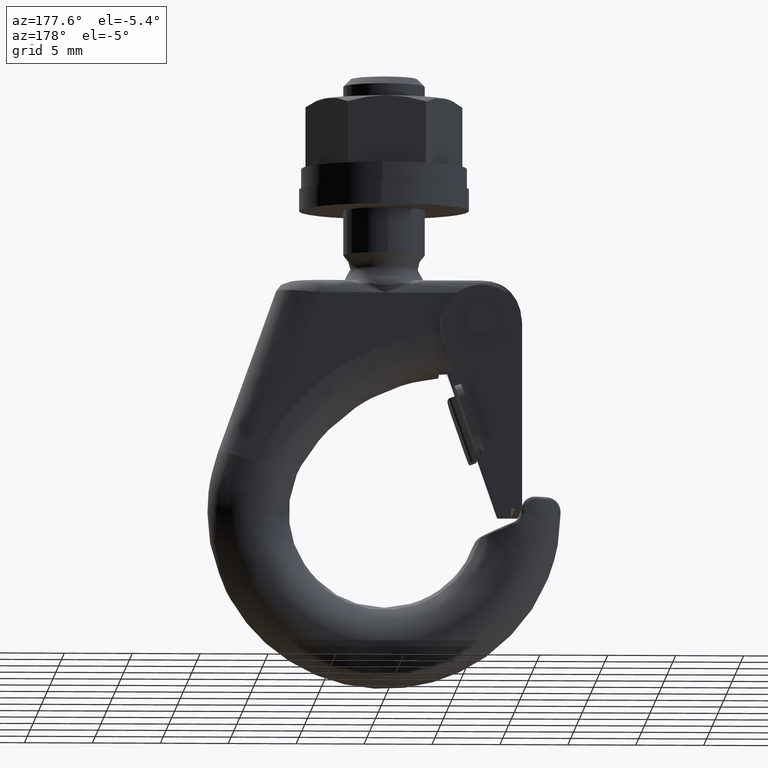
[diagram: clean part render]
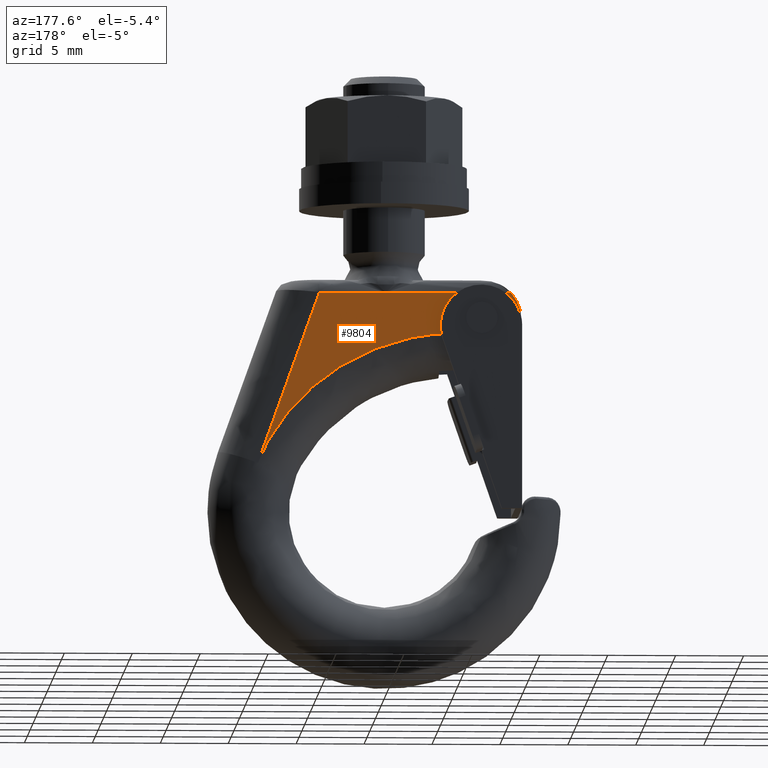
[diagram: same view with one face highlighted and labeled with its STEP entity id]
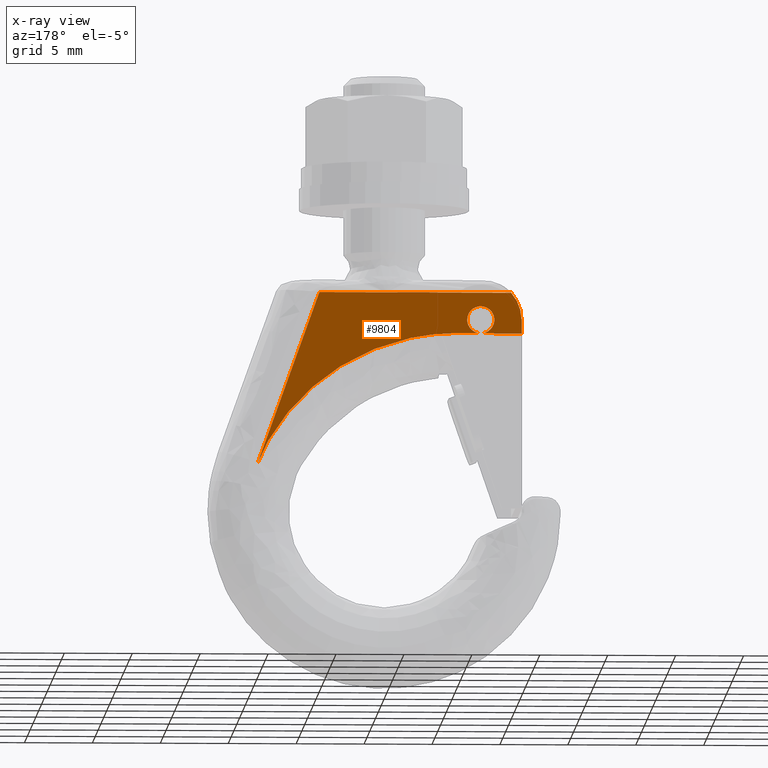
[diagram: x-ray of the same camera — body ghosted, the highlighted face saturated]
A machine part, auxiliary view. The second image highlights one B-rep face of the part: STEP entity #9804.
The next image is the same camera in x-ray: the body ghosted, the highlighted face saturated — about 0% of this face is hidden behind the body in this view.
In plain terms, the highlighted face is a freeform B-spline surface patch.
Its self-contained STEP definition (entity closure, byte-faithful):
#5809=CARTESIAN_POINT('',(-6.000038076938065,3.0,14.008726535754560));
#5810=VERTEX_POINT('',#5809);
#5816=CARTESIAN_POINT('',(-7.0,3.0,13.0));
#5817=VERTEX_POINT('',#5816);
#5818=CARTESIAN_POINT('',(-7.0,3.0,13.0));
#5819=CARTESIAN_POINT('',(-6.0,3.0,13.000000000000004));
#5820=CARTESIAN_POINT('',(-6.0,3.0,14.0));
#5821=CARTESIAN_POINT('',(-6.0,3.000000000000000,14.004363351076897));
#5822=CARTESIAN_POINT('',(-6.000038076938065,2.999999999999999,14.008726535754558));
#5830=(BOUNDED_CURVE()B_SPLINE_CURVE(2,(#5818,#5819,#5820,#5821,#5822),.UNSPECIFIED.,.F.,.U.)B_SPLINE_CURVE_WITH_KNOTS((3,2,3),(0.500000000000000,0.750000000000000,0.751539894425239),.UNSPECIFIED.)CURVE()GEOMETRIC_REPRESENTATION_ITEM()RATIONAL_B_SPLINE_CURVE((1.0,0.707106781186548,1.0,0.998195901460636,0.996414027891538))REPRESENTATION_ITEM(''));
#5831=EDGE_CURVE('',#5817,#5810,#5830,.T.);
#5833=CARTESIAN_POINT('',(-7.992266213821809,3.0,13.875871997890361));
#5834=VERTEX_POINT('',#5833);
#5835=CARTESIAN_POINT('',(-7.992266213821809,3.0,13.875871997890362));
#5836=CARTESIAN_POINT('',(-7.882698600096780,3.000000000000000,13.000000000000005));
#5837=CARTESIAN_POINT('',(-7.0,3.0,13.0));
#5845=(BOUNDED_CURVE()B_SPLINE_CURVE(2,(#5835,#5836,#5837),.UNSPECIFIED.,.F.,.U.)B_SPLINE_CURVE_WITH_KNOTS((3,3),(0.271473928980834,0.500000000000000),.UNSPECIFIED.)CURVE()GEOMETRIC_REPRESENTATION_ITEM()RATIONAL_B_SPLINE_CURVE((0.954005430255055,0.732265053905619,1.0))REPRESENTATION_ITEM(''));
#5846=EDGE_CURVE('',#5834,#5817,#5845,.T.);
#5896=CARTESIAN_POINT('',(-7.0,3.0,15.0));
#5897=VERTEX_POINT('',#5896);
#5898=CARTESIAN_POINT('',(-7.0,3.0,15.0));
#5899=CARTESIAN_POINT('',(-8.0,3.0,14.999999999999995));
#5900=CARTESIAN_POINT('',(-8.0,3.0,14.0));
#5901=CARTESIAN_POINT('',(-8.0,3.0,13.937695072436350));
#5902=CARTESIAN_POINT('',(-7.992266213821809,3.000000000000001,13.875871997890364));
#5910=(BOUNDED_CURVE()B_SPLINE_CURVE(2,(#5898,#5899,#5900,#5901,#5902),.UNSPECIFIED.,.F.,.U.)B_SPLINE_CURVE_WITH_KNOTS((3,2,3),(0.0,0.250000000000000,0.271473928980834),.UNSPECIFIED.)CURVE()GEOMETRIC_REPRESENTATION_ITEM()RATIONAL_B_SPLINE_CURVE((1.0,0.707106781186548,1.0,0.974841727280928,0.954005430255054))REPRESENTATION_ITEM(''));
#5911=EDGE_CURVE('',#5897,#5834,#5910,.T.);
#5913=CARTESIAN_POINT('',(-6.000038076938065,2.999999999999999,14.008726535754558));
#5914=CARTESIAN_POINT('',(-6.008688789912973,3.000000000000000,15.0));
#5915=CARTESIAN_POINT('',(-7.0,3.0,15.0));
#5923=(BOUNDED_CURVE()B_SPLINE_CURVE(2,(#5913,#5914,#5915),.UNSPECIFIED.,.F.,.U.)B_SPLINE_CURVE_WITH_KNOTS((3,3),(0.751539894425240,1.0),.UNSPECIFIED.)CURVE()GEOMETRIC_REPRESENTATION_ITEM()RATIONAL_B_SPLINE_CURVE((0.996414027891537,0.708910879725913,1.0))REPRESENTATION_ITEM(''));
#5924=EDGE_CURVE('',#5810,#5897,#5923,.T.);
#6819=CARTESIAN_POINT('',(8.660244136243270,3.0,5.000004525769190));
#6820=VERTEX_POINT('',#6819);
#6834=CARTESIAN_POINT('',(9.410401189477899,3.0,3.382955535689185));
#6835=VERTEX_POINT('',#6834);
#6836=CARTESIAN_POINT('',(9.410401189477899,3.0,3.382955535689185));
#6837=CARTESIAN_POINT('',(9.107673606407005,3.0,4.225043543196093));
#6838=CARTESIAN_POINT('',(8.660244136243270,3.0,5.000004525769190));
#6846=(BOUNDED_CURVE()B_SPLINE_CURVE(2,(#6836,#6837,#6838),.UNSPECIFIED.,.F.,.U.)CURVE()GEOMETRIC_REPRESENTATION_ITEM()QUASI_UNIFORM_CURVE()RATIONAL_B_SPLINE_CURVE((1.0,0.996020104484693,1.0))REPRESENTATION_ITEM(''));
#6847=EDGE_CURVE('',#6835,#6820,#6846,.T.);
#8167=CARTESIAN_POINT('',(0.0,3.0,16.0));
#8168=VERTEX_POINT('',#8167);
#9508=CARTESIAN_POINT('',(4.874694934986360,3.0,16.0));
#9509=VERTEX_POINT('',#9508);
#9510=CARTESIAN_POINT('',(0.0,3.0,16.0));
#9511=CARTESIAN_POINT('',(4.874694934986360,3.0,16.0));
#9512=QUASI_UNIFORM_CURVE('',1,(#9510,#9511),.UNSPECIFIED.,.F.,.U.);
#9513=EDGE_CURVE('',#8168,#9509,#9512,.T.);
#9657=CARTESIAN_POINT('',(4.874694934986360,3.0,16.0));
#9658=CARTESIAN_POINT('',(9.410401189477899,3.0,3.382955535689185));
#9659=QUASI_UNIFORM_CURVE('',1,(#9657,#9658),.UNSPECIFIED.,.F.,.U.);
#9660=EDGE_CURVE('',#9509,#6835,#9659,.T.);
#9739=CARTESIAN_POINT('',(-10.969549501793299,3.0,16.630221346538050));
#9740=CARTESIAN_POINT('',(10.379951211898730,3.0,16.630221346538050));
#9741=CARTESIAN_POINT('',(-10.969549501793299,3.0,2.752733850735636));
#9742=CARTESIAN_POINT('',(10.379951211898730,3.0,2.752733850735636));
#9743=B_SPLINE_SURFACE_WITH_KNOTS('',1,1,((#9739,#9741),(#9740,#9742)),.UNSPECIFIED.,.F.,.F.,.U.,(2,2),(2,2),(0.0,21.349500713692020),(0.0,13.877487495802409),.UNSPECIFIED.);
#9744=CARTESIAN_POINT('',(-9.236067977499790,3.0,16.0));
#9745=VERTEX_POINT('',#9744);
#9746=CARTESIAN_POINT('',(-10.0,3.0,14.0));
#9747=VERTEX_POINT('',#9746);
#9748=CARTESIAN_POINT('',(-9.236067977499790,3.0,16.0));
#9749=CARTESIAN_POINT('',(-10.0,2.999999999999999,15.145898033750317));
#9750=CARTESIAN_POINT('',(-10.0,3.0,14.0));
#9758=(BOUNDED_CURVE()B_SPLINE_CURVE(2,(#9748,#9749,#9750),.UNSPECIFIED.,.F.,.U.)CURVE()GEOMETRIC_REPRESENTATION_ITEM()QUASI_UNIFORM_CURVE()RATIONAL_B_SPLINE_CURVE((1.0,0.934172358962716,1.0))REPRESENTATION_ITEM(''));
#9759=EDGE_CURVE('',#9745,#9747,#9758,.T.);
#9760=ORIENTED_EDGE('',*,*,#9759,.F.);
#9761=CARTESIAN_POINT('',(-9.236067977499790,3.0,16.0));
#9762=CARTESIAN_POINT('',(0.0,3.0,16.0));
#9763=QUASI_UNIFORM_CURVE('',1,(#9761,#9762),.UNSPECIFIED.,.F.,.U.);
#9764=EDGE_CURVE('',#9745,#8168,#9763,.T.);
#9765=ORIENTED_EDGE('',*,*,#9764,.T.);
#9766=ORIENTED_EDGE('',*,*,#9513,.T.);
#9767=ORIENTED_EDGE('',*,*,#9660,.T.);
#9768=ORIENTED_EDGE('',*,*,#6847,.T.);
#9769=CARTESIAN_POINT('',(-5.020202411748620,3.0,12.999032351335201));
#9770=VERTEX_POINT('',#9769);
#9771=CARTESIAN_POINT('',(8.660244136243270,3.0,5.000004525769190));
#9772=CARTESIAN_POINT('',(4.099909700274364,3.000000000000000,12.898729450708556));
#9773=CARTESIAN_POINT('',(-5.020202411748618,3.0,12.999032351335201));
#9781=(BOUNDED_CURVE()B_SPLINE_CURVE(2,(#9771,#9772,#9773),.UNSPECIFIED.,.F.,.U.)CURVE()GEOMETRIC_REPRESENTATION_ITEM()QUASI_UNIFORM_CURVE()RATIONAL_B_SPLINE_CURVE((1.0,0.868761765476509,1.0))REPRESENTATION_ITEM(''));
#9782=EDGE_CURVE('',#6820,#9770,#9781,.T.);
#9783=ORIENTED_EDGE('',*,*,#9782,.T.);
#9784=CARTESIAN_POINT('',(-10.0,3.0,12.999032351335400));
#9785=VERTEX_POINT('',#9784);
#9786=CARTESIAN_POINT('',(-5.020202411748620,3.0,12.999032351335201));
#9787=CARTESIAN_POINT('',(-10.0,3.0,12.999032351335400));
#9788=QUASI_UNIFORM_CURVE('',1,(#9786,#9787),.UNSPECIFIED.,.F.,.U.);
#9789=EDGE_CURVE('',#9770,#9785,#9788,.T.);
#9790=ORIENTED_EDGE('',*,*,#9789,.T.);
#9791=CARTESIAN_POINT('',(-10.0,3.0,12.999032351335400));
#9792=CARTESIAN_POINT('',(-10.0,3.0,14.0));
#9793=QUASI_UNIFORM_CURVE('',1,(#9791,#9792),.UNSPECIFIED.,.F.,.U.);
#9794=EDGE_CURVE('',#9785,#9747,#9793,.T.);
#9795=ORIENTED_EDGE('',*,*,#9794,.T.);
#9796=EDGE_LOOP('',(#9760,#9765,#9766,#9767,#9768,#9783,#9790,#9795));
#9797=FACE_OUTER_BOUND('',#9796,.T.);
#9798=ORIENTED_EDGE('',*,*,#5831,.T.);
#9799=ORIENTED_EDGE('',*,*,#5924,.T.);
#9800=ORIENTED_EDGE('',*,*,#5911,.T.);
#9801=ORIENTED_EDGE('',*,*,#5846,.T.);
#9802=EDGE_LOOP('',(#9798,#9799,#9800,#9801));
#9803=FACE_BOUND('',#9802,.T.);
#9804=ADVANCED_FACE('',(#9797,#9803),#9743,.T.);